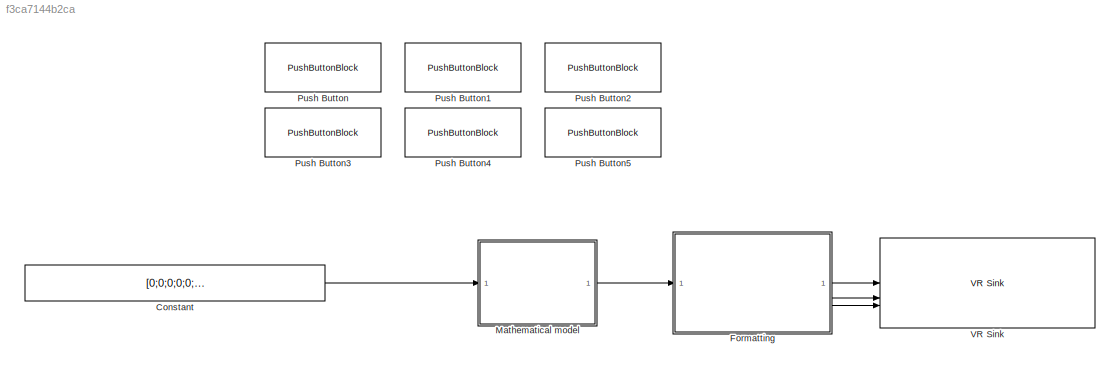
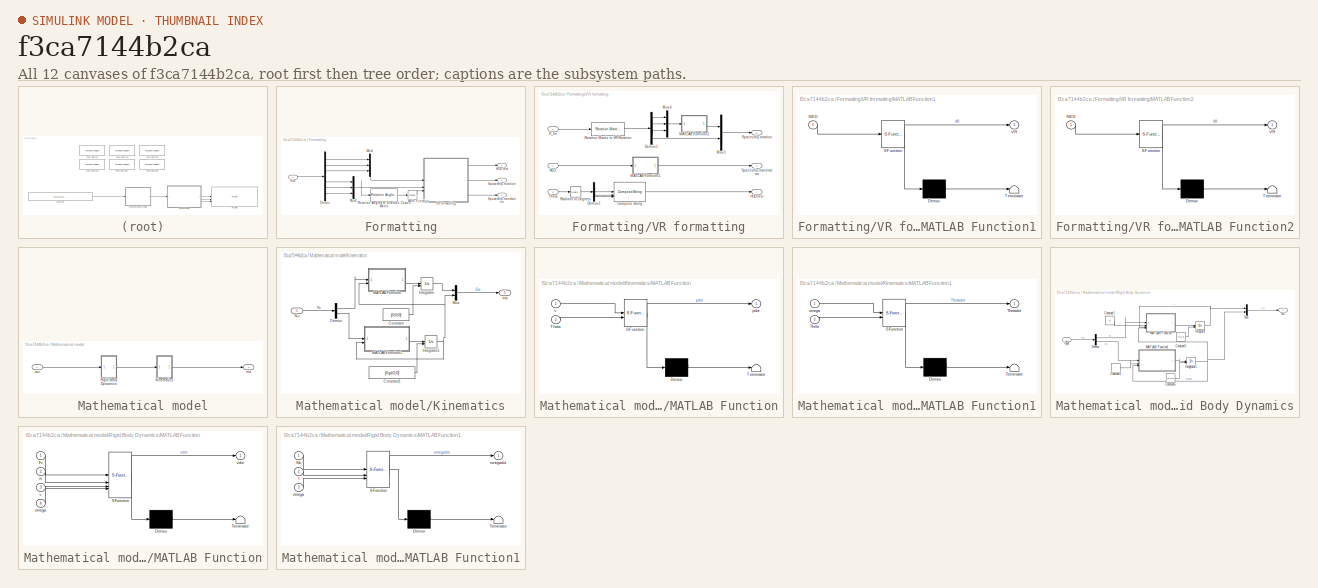
[diagram: thumbnail index - all 12 canvases of the model, root first then tree order]
MODEL slx_f3ca7144b2ca
KIND model
CONFIG AbsTol = auto
CONFIG EnableMultiTasking = on
CONFIG FixedStep = auto
CONFIG MaxStep = auto
CONFIG MinStep = auto
CONFIG RelTol = 1e-3
CONFIG SampleTimeConstraint = Unconstrained
CONFIG SolverName = ode45
CONFIG StartTime = 0.0
CONFIG StopTime = 30
BLOCK [Constant] Constant
  Value = [0;0;0;0;0;0]
BLOCK [SubSystem] Formatting
BLOCK [Demux] Formatting/Demux
  Outputs = 6
BLOCK [Outport] Formatting/HUD.text
BLOCK [Math] Formatting/Math Function
  Operator = transpose
BLOCK [Mux] Formatting/Mux1
  DisplayOption = bar
  Inputs = 3
BLOCK [Mux] Formatting/Mux3
  DisplayOption = bar
  Inputs = 3
BLOCK [Reference] Formatting/Rotation Angles to Direction Cosine Matrix  REF=sharedtransform/Rotation Angles to
Direction Cosine Matrix
  AttributesFormatString = Rotation Order: %<rotationOrder>
  SourceBlock = sharedtransform/Rotation Angles to\nDirection Cosine Matrix
  SourceType = Ang2DCM
BLOCK [Outport] Formatting/Spaceship.rotation
  Port = 2
BLOCK [Outport] Formatting/Spaceship.translation
  Port = 3
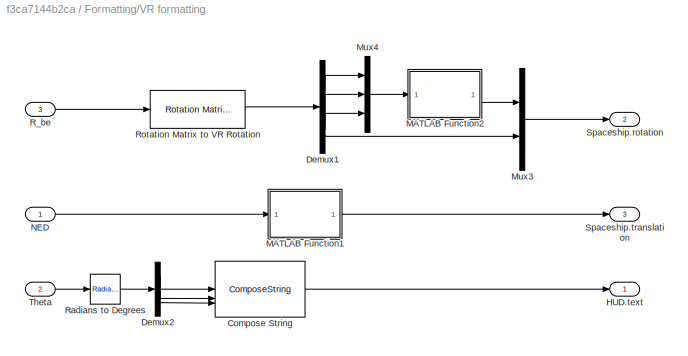
BLOCK [SubSystem] Formatting/VR formatting
BLOCK [ComposeString] Formatting/VR formatting/Compose String
  Format = 'Roll    : %7.2f deg\nPitch   : %7.2f deg\nYaw     : %7.2f deg'
BLOCK [Demux] Formatting/VR formatting/Demux1
BLOCK [Demux] Formatting/VR formatting/Demux2
  Outputs = 3
BLOCK [Outport] Formatting/VR formatting/HUD.text
BLOCK [SubSystem] Formatting/VR formatting/MATLAB Function1
  ErrorFcn = Stateflow.Translate.translate
  PermitHierarchicalResolution = ExplicitOnly
  SFBlockType = MATLAB Function
  TreatAsAtomicUnit = on
BLOCK [Demux] Formatting/VR formatting/MATLAB Function1/ Demux 
  Outputs = 1
BLOCK [S-Function] Formatting/VR formatting/MATLAB Function1/ SFunction 
  EnableBusSupport = on
  FunctionName = sf_sfun
  PortCounts = [1 2]
  SFcnIsStateOwnerBlock = off
  SFunctionDeploymentMode = off
  Tag = Stateflow S-Function 5
BLOCK [Terminator] Formatting/VR formatting/MATLAB Function1/ Terminator 
BLOCK [Inport] Formatting/VR formatting/MATLAB Function1/NED
BLOCK [Outport] Formatting/VR formatting/MATLAB Function1/VR
BLOCK [SubSystem] Formatting/VR formatting/MATLAB Function2
  ErrorFcn = Stateflow.Translate.translate
  PermitHierarchicalResolution = ExplicitOnly
  SFBlockType = MATLAB Function
  TreatAsAtomicUnit = on
BLOCK [Demux] Formatting/VR formatting/MATLAB Function2/ Demux 
  Outputs = 1
BLOCK [S-Function] Formatting/VR formatting/MATLAB Function2/ SFunction 
  EnableBusSupport = on
  FunctionName = sf_sfun
  PortCounts = [1 2]
  SFcnIsStateOwnerBlock = off
  SFunctionDeploymentMode = off
  Tag = Stateflow S-Function 6
BLOCK [Terminator] Formatting/VR formatting/MATLAB Function2/ Terminator 
BLOCK [Inport] Formatting/VR formatting/MATLAB Function2/NED
BLOCK [Outport] Formatting/VR formatting/MATLAB Function2/VR
BLOCK [Mux] Formatting/VR formatting/Mux3
  DisplayOption = bar
  Inputs = 2
BLOCK [Mux] Formatting/VR formatting/Mux4
  DisplayOption = bar
  Inputs = 3
BLOCK [Inport] Formatting/VR formatting/NED
BLOCK [Inport] Formatting/VR formatting/R_be
  Port = 3
BLOCK [Reference] Formatting/VR formatting/Radians to Degrees  REF=simulink_extras/Transformations/Radians
to Degrees
  SourceBlock = simulink_extras/Transformations/Radians\nto Degrees
  SourceType = RadiansToDegrees
BLOCK [Reference] Formatting/VR formatting/Rotation Matrix to VR Rotation  REF=vrlib/Utilities/Rotation Matrix
to VR Rotation
  SourceBlock = vrlib/Utilities/Rotation Matrix\nto VR Rotation
  SourceType = Rotation Matrix to VR Rotation
BLOCK [Outport] Formatting/VR formatting/Spaceship.rotation
  Port = 2
BLOCK [Outport] Formatting/VR formatting/Spaceship.translation
  Port = 3
BLOCK [Inport] Formatting/VR formatting/Theta
  Port = 2
BLOCK [Inport] Formatting/eta
BLOCK [SubSystem] Mathematical model
BLOCK [SubSystem] Mathematical model/Kinematics
BLOCK [Constant] Mathematical model/Kinematics/Constant
  Value = [0;0;0]
BLOCK [Constant] Mathematical model/Kinematics/Constant1
  Value = [0;pi/2;0]
BLOCK [Demux] Mathematical model/Kinematics/Demux
  Outputs = 2
BLOCK [Integrator] Mathematical model/Kinematics/Integrator
  InitialConditionSource = external
BLOCK [Integrator] Mathematical model/Kinematics/Integrator1
  InitialConditionSource = external
BLOCK [SubSystem] Mathematical model/Kinematics/MATLAB Function
  ErrorFcn = Stateflow.Translate.translate
  PermitHierarchicalResolution = ExplicitOnly
  SFBlockType = MATLAB Function
  TreatAsAtomicUnit = on
BLOCK [Demux] Mathematical model/Kinematics/MATLAB Function/ Demux 
  Outputs = 1
BLOCK [S-Function] Mathematical model/Kinematics/MATLAB Function/ SFunction 
  EnableBusSupport = on
  FunctionName = sf_sfun
  PortCounts = [2 2]
  SFcnIsStateOwnerBlock = off
  SFunctionDeploymentMode = off
  Tag = Stateflow S-Function 3
BLOCK [Terminator] Mathematical model/Kinematics/MATLAB Function/ Terminator 
BLOCK [Inport] Mathematical model/Kinematics/MATLAB Function/Theta
  Port = 2
BLOCK [Outport] Mathematical model/Kinematics/MATLAB Function/pdot
BLOCK [Inport] Mathematical model/Kinematics/MATLAB Function/v
BLOCK [SubSystem] Mathematical model/Kinematics/MATLAB Function1
  ErrorFcn = Stateflow.Translate.translate
  PermitHierarchicalResolution = ExplicitOnly
  SFBlockType = MATLAB Function
  TreatAsAtomicUnit = on
BLOCK [Demux] Mathematical model/Kinematics/MATLAB Function1/ Demux 
  Outputs = 1
BLOCK [S-Function] Mathematical model/Kinematics/MATLAB Function1/ SFunction 
  EnableBusSupport = on
  FunctionName = sf_sfun
  PortCounts = [2 2]
  SFcnIsStateOwnerBlock = off
  SFunctionDeploymentMode = off
  Tag = Stateflow S-Function 4
BLOCK [Terminator] Mathematical model/Kinematics/MATLAB Function1/ Terminator 
BLOCK [Inport] Mathematical model/Kinematics/MATLAB Function1/Theta
  Port = 2
BLOCK [Outport] Mathematical model/Kinematics/MATLAB Function1/Thetadot
BLOCK [Inport] Mathematical model/Kinematics/MATLAB Function1/omega
BLOCK [Mux] Mathematical model/Kinematics/Mux
  DisplayOption = bar
  Inputs = 2
BLOCK [Inport] Mathematical model/Kinematics/Nu
BLOCK [Outport] Mathematical model/Kinematics/eta
  IconDisplay = Signal name
BLOCK [SubSystem] Mathematical model/Rigid Body Dynamics
BLOCK [Constant] Mathematical model/Rigid Body Dynamics/Constant1
  Value = m
BLOCK [Constant] Mathematical model/Rigid Body Dynamics/Constant4
  Value = I
BLOCK [Constant] Mathematical model/Rigid Body Dynamics/Constant5
  Value = [0;0;0]
BLOCK [Constant] Mathematical model/Rigid Body Dynamics/Constant6
  Value = [0;0;0]
BLOCK [Demux] Mathematical model/Rigid Body Dynamics/Demux
  Outputs = 2
BLOCK [Inport] Mathematical model/Rigid Body Dynamics/Input
  IconDisplay = Signal name
BLOCK [Integrator] Mathematical model/Rigid Body Dynamics/Integrator
  InitialConditionSource = external
BLOCK [Integrator] Mathematical model/Rigid Body Dynamics/Integrator1
  InitialConditionSource = external
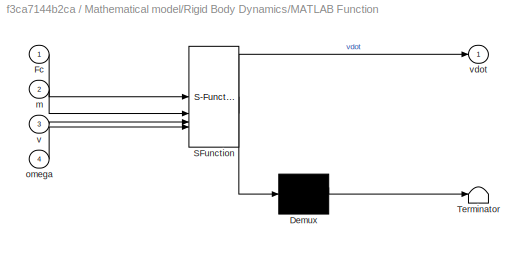
BLOCK [SubSystem] Mathematical model/Rigid Body Dynamics/MATLAB Function
  ErrorFcn = Stateflow.Translate.translate
  PermitHierarchicalResolution = ExplicitOnly
  SFBlockType = MATLAB Function
  TreatAsAtomicUnit = on
BLOCK [Demux] Mathematical model/Rigid Body Dynamics/MATLAB Function/ Demux 
  Outputs = 1
BLOCK [S-Function] Mathematical model/Rigid Body Dynamics/MATLAB Function/ SFunction 
  EnableBusSupport = on
  FunctionName = sf_sfun
  PortCounts = [4 2]
  SFcnIsStateOwnerBlock = off
  SFunctionDeploymentMode = off
  Tag = Stateflow S-Function 2
BLOCK [Terminator] Mathematical model/Rigid Body Dynamics/MATLAB Function/ Terminator 
BLOCK [Inport] Mathematical model/Rigid Body Dynamics/MATLAB Function/Fc
BLOCK [Inport] Mathematical model/Rigid Body Dynamics/MATLAB Function/m
  Port = 2
BLOCK [Inport] Mathematical model/Rigid Body Dynamics/MATLAB Function/omega
  Port = 4
BLOCK [Inport] Mathematical model/Rigid Body Dynamics/MATLAB Function/v
  Port = 3
BLOCK [Outport] Mathematical model/Rigid Body Dynamics/MATLAB Function/vdot
BLOCK [SubSystem] Mathematical model/Rigid Body Dynamics/MATLAB Function1
  ErrorFcn = Stateflow.Translate.translate
  PermitHierarchicalResolution = ExplicitOnly
  SFBlockType = MATLAB Function
  TreatAsAtomicUnit = on
BLOCK [Demux] Mathematical model/Rigid Body Dynamics/MATLAB Function1/ Demux 
  Outputs = 1
BLOCK [S-Function] Mathematical model/Rigid Body Dynamics/MATLAB Function1/ SFunction 
  EnableBusSupport = on
  FunctionName = sf_sfun
  PortCounts = [3 2]
  SFcnIsStateOwnerBlock = off
  SFunctionDeploymentMode = off
  Tag = Stateflow S-Function 1
BLOCK [Terminator] Mathematical model/Rigid Body Dynamics/MATLAB Function1/ Terminator 
BLOCK [Inport] Mathematical model/Rigid Body Dynamics/MATLAB Function1/I
  Port = 2
BLOCK [Inport] Mathematical model/Rigid Body Dynamics/MATLAB Function1/Mc
BLOCK [Inport] Mathematical model/Rigid Body Dynamics/MATLAB Function1/omega
  Port = 3
BLOCK [Outport] Mathematical model/Rigid Body Dynamics/MATLAB Function1/omegadot
BLOCK [Mux] Mathematical model/Rigid Body Dynamics/Mux
  DisplayOption = bar
  Inputs = 2
BLOCK [Outport] Mathematical model/Rigid Body Dynamics/Nu
  IconDisplay = Signal name
BLOCK [Outport] Mathematical model/eta
BLOCK [Inport] Mathematical model/tau
BLOCK [PushButtonBlock] Push Button
  ButtonText = Force X
  ButtonType = Latch
  OffValue = 0.000000
  OnValue = 100000
BLOCK [PushButtonBlock] Push Button1
  ButtonText = Force Y
  ButtonType = Latch
  OffValue = 0.000000
  OnValue = 100000
BLOCK [PushButtonBlock] Push Button2
  ButtonText = Force Z
  ButtonType = Latch
  OffValue = 0.000000
  OnValue = -100000
BLOCK [PushButtonBlock] Push Button3
  ButtonText = Moment X
  ButtonType = Latch
  OffValue = 0.000000
  OnValue = 10000
BLOCK [PushButtonBlock] Push Button4
  ButtonText = Moment Y
  ButtonType = Latch
  OffValue = 0.000000
  OnValue = 10000
BLOCK [PushButtonBlock] Push Button5
  ButtonText = Moment Z
  ButtonType = Latch
  OffValue = 0.000000
  OnValue = 10000
BLOCK [Reference] VR Sink  REF=vrlib/VR Sink
  InstantiateOnLoad = on
  SourceBlock = vrlib/VR Sink
  SourceType = Virtual Reality Sink
LINE Constant:1 -> Mathematical model:1
LINE Formatting/Demux:1 -> Formatting/Mux1:1
LINE Formatting/Demux:2 -> Formatting/Mux1:2
LINE Formatting/Demux:3 -> Formatting/Mux1:3
LINE Formatting/Demux:4 -> Formatting/Mux3:1
LINE Formatting/Demux:5 -> Formatting/Mux3:2
LINE Formatting/Demux:6 -> Formatting/Mux3:3
LINE Formatting/Math Function:1 -> Formatting/VR formatting:3
LINE Formatting/Mux1:1 -> Formatting/VR formatting:1
NET Formatting/Mux3:1 -> Formatting/Rotation Angles to Direction Cosine Matrix:1, Formatting/VR formatting:2
LINE Formatting/Rotation Angles to Direction Cosine Matrix:1 -> Formatting/Math Function:1
LINE Formatting/VR formatting/Compose String:1 -> Formatting/VR formatting/HUD.text:1
LINE Formatting/VR formatting/Demux1:1 -> Formatting/VR formatting/Mux4:1
LINE Formatting/VR formatting/Demux1:2 -> Formatting/VR formatting/Mux4:2
LINE Formatting/VR formatting/Demux1:3 -> Formatting/VR formatting/Mux4:3
LINE Formatting/VR formatting/Demux1:4 -> Formatting/VR formatting/Mux3:2
LINE Formatting/VR formatting/Demux2:1 -> Formatting/VR formatting/Compose String:1
LINE Formatting/VR formatting/Demux2:2 -> Formatting/VR formatting/Compose String:2
LINE Formatting/VR formatting/Demux2:3 -> Formatting/VR formatting/Compose String:3
LINE Formatting/VR formatting/MATLAB Function1:1 -> Formatting/VR formatting/Spaceship.translation:1
LINE Formatting/VR formatting/MATLAB Function2:1 -> Formatting/VR formatting/Mux3:1
LINE Formatting/VR formatting/Mux3:1 -> Formatting/VR formatting/Spaceship.rotation:1
LINE Formatting/VR formatting/Mux4:1 -> Formatting/VR formatting/MATLAB Function2:1
LINE Formatting/VR formatting/NED:1 -> Formatting/VR formatting/MATLAB Function1:1
LINE Formatting/VR formatting/R_be:1 -> Formatting/VR formatting/Rotation Matrix to VR Rotation:1
LINE Formatting/VR formatting/Radians to Degrees:1 -> Formatting/VR formatting/Demux2:1
LINE Formatting/VR formatting/Rotation Matrix to VR Rotation:1 -> Formatting/VR formatting/Demux1:1
LINE Formatting/VR formatting/Theta:1 -> Formatting/VR formatting/Radians to Degrees:1
LINE Formatting/VR formatting:1 -> Formatting/HUD.text:1
LINE Formatting/VR formatting:2 -> Formatting/Spaceship.rotation:1
LINE Formatting/VR formatting:3 -> Formatting/Spaceship.translation:1
LINE Formatting/eta:1 -> Formatting/Demux:1
LINE Formatting:1 -> VR Sink:1
LINE Formatting:2 -> VR Sink:2
LINE Formatting:3 -> VR Sink:3
LINE Mathematical model/Kinematics/Constant1:1 -> Mathematical model/Kinematics/Integrator1:2
LINE Mathematical model/Kinematics/Constant:1 -> Mathematical model/Kinematics/Integrator:2
LINE Mathematical model/Kinematics/Demux:1 -> Mathematical model/Kinematics/MATLAB Function:1
LINE Mathematical model/Kinematics/Demux:2 -> Mathematical model/Kinematics/MATLAB Function1:1
NET Mathematical model/Kinematics/Integrator1:1 -> Mathematical model/Kinematics/MATLAB Function1:2, Mathematical model/Kinematics/MATLAB Function:2, Mathematical model/Kinematics/Mux:2
LINE Mathematical model/Kinematics/Integrator:1 -> Mathematical model/Kinematics/Mux:1
LINE Mathematical model/Kinematics/MATLAB Function1:1 -> Mathematical model/Kinematics/Integrator1:1
LINE Mathematical model/Kinematics/MATLAB Function:1 -> Mathematical model/Kinematics/Integrator:1
LINE Mathematical model/Kinematics/Mux:1 -> Mathematical model/Kinematics/eta:1
LINE Mathematical model/Kinematics/Nu:1 -> Mathematical model/Kinematics/Demux:1
LINE Mathematical model/Kinematics:1 -> Mathematical model/eta:1
LINE Mathematical model/Rigid Body Dynamics/Constant1:1 -> Mathematical model/Rigid Body Dynamics/MATLAB Function:2
LINE Mathematical model/Rigid Body Dynamics/Constant4:1 -> Mathematical model/Rigid Body Dynamics/MATLAB Function1:2
LINE Mathematical model/Rigid Body Dynamics/Constant5:1 -> Mathematical model/Rigid Body Dynamics/Integrator:2
LINE Mathematical model/Rigid Body Dynamics/Constant6:1 -> Mathematical model/Rigid Body Dynamics/Integrator1:2
LINE Mathematical model/Rigid Body Dynamics/Demux:1 -> Mathematical model/Rigid Body Dynamics/MATLAB Function:1
LINE Mathematical model/Rigid Body Dynamics/Demux:2 -> Mathematical model/Rigid Body Dynamics/MATLAB Function1:1
LINE Mathematical model/Rigid Body Dynamics/Input:1 -> Mathematical model/Rigid Body Dynamics/Demux:1
NET Mathematical model/Rigid Body Dynamics/Integrator1:1 -> Mathematical model/Rigid Body Dynamics/MATLAB Function1:3, Mathematical model/Rigid Body Dynamics/MATLAB Function:4, Mathematical model/Rigid Body Dynamics/Mux:2
NET Mathematical model/Rigid Body Dynamics/Integrator:1 -> Mathematical model/Rigid Body Dynamics/MATLAB Function:3, Mathematical model/Rigid Body Dynamics/Mux:1
LINE Mathematical model/Rigid Body Dynamics/MATLAB Function1:1 -> Mathematical model/Rigid Body Dynamics/Integrator1:1
LINE Mathematical model/Rigid Body Dynamics/MATLAB Function:1 -> Mathematical model/Rigid Body Dynamics/Integrator:1
LINE Mathematical model/Rigid Body Dynamics/Mux:1 -> Mathematical model/Rigid Body Dynamics/Nu:1
LINE Mathematical model/Rigid Body Dynamics:1 -> Mathematical model/Kinematics:1
LINE Mathematical model/tau:1 -> Mathematical model/Rigid Body Dynamics:1
LINE Mathematical model:1 -> Formatting:1
note: NET lines group one-source signal fan-out (src -> all destinations, sorted); 1:1 wires keep LINE
CHART Mathematical model/Rigid Body Dynamics/MATLAB Function1 states=1 transitions=1
  STATE_LABEL 'eML_blk_kernel()'
  STATE_LABEL 'SCRIPT:\nfunction omegadot = fcn(Mc, I, omega)\nomegadot = inv(I)*(Mc - cross(omega, I*omega));\n\n'
CHART Mathematical model/Rigid Body Dynamics/MATLAB Function states=1 transitions=1
  STATE_LABEL 'eML_blk_kernel()'
  STATE_LABEL 'SCRIPT:\nfunction vdot = fcn(Fc, m, v, omega)\nvdot = 1/m * (Fc - cross(omega, m*v));\n\n'
CHART Mathematical model/Kinematics/MATLAB Function states=1 transitions=1
  STATE_LABEL 'eML_blk_kernel()'
  STATE_LABEL 'SCRIPT:\nfunction pdot = fcn(v, Theta)\n    roll = Theta(1);\n    pitch = Theta(2);\n    yaw = Theta(3);\n    \n    rotation = Rz(yaw) * Ry(pitch) * Rx(roll);\n    \n    pdot = rotation * v;\nend\n\nfunction Rot = Rx(roll)\n    Rot = [1,        0,         0;\n           0,        cos(roll),  -sin(roll);\n           0,        sin(roll),   cos(roll);];\nend\n\nfunction Rot = Ry(pitch)\n    Rot = [cos(pitch),  0,    s...<+228ch>'
CHART Mathematical model/Kinematics/MATLAB Function1 states=1 transitions=1
  STATE_LABEL 'eML_blk_kernel()'
  STATE_LABEL 'SCRIPT:\nfunction Thetadot = fcn(omega, Theta)\nroll = Theta(1); %phi\npitch = Theta(2); %theta\nyaw = Theta(3); %psi\n\nThetadot = Transformation(roll, pitch, yaw) * omega;\nend\n\nfunction mat = Transformation(roll, pitch, yaw)\n    mat = [1,        sin(roll)*sin(pitch)/cos(pitch),   cos(roll)*sin(pitch)/cos(pitch);\n           0,        cos(roll),                         -sin(roll);\n           0,        s...<+61ch>'
CHART Formatting/VR formatting/MATLAB Function1 states=1 transitions=1
  STATE_LABEL 'eML_blk_kernel()'
  STATE_LABEL 'SCRIPT:\nfunction VR = NED2VR(NED)\n\nx = NED(1); % north\ny = NED(2); % east \nz = NED(3); % down\n\nVR = [ -y ; -z ; x ];\n'
CHART Formatting/VR formatting/MATLAB Function2 states=1 transitions=1
  STATE_LABEL 'eML_blk_kernel()'
  STATE_LABEL 'SCRIPT:\nfunction VR = NED2VR(NED)\n\nx = NED(1); % north\ny = NED(2); % east \nz = NED(3); % down\n\nVR = [ -y ; -z ; x ];\n'
CHART  states=0 transitions=0
CHART  states=0 transitions=0
CHART  states=0 transitions=0
CHART  states=0 transitions=0
CHART  states=0 transitions=0
CHART  states=0 transitions=0
